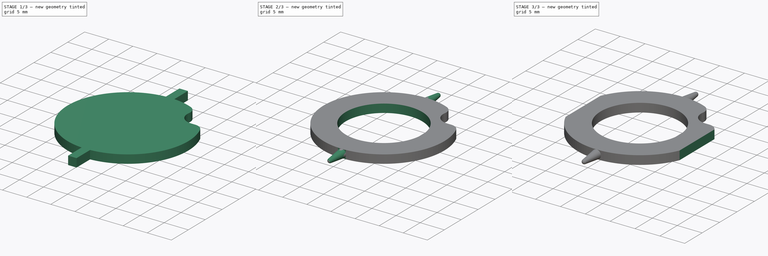
[diagram: build sequence overview — one tinted view per stage of 3, left to right]
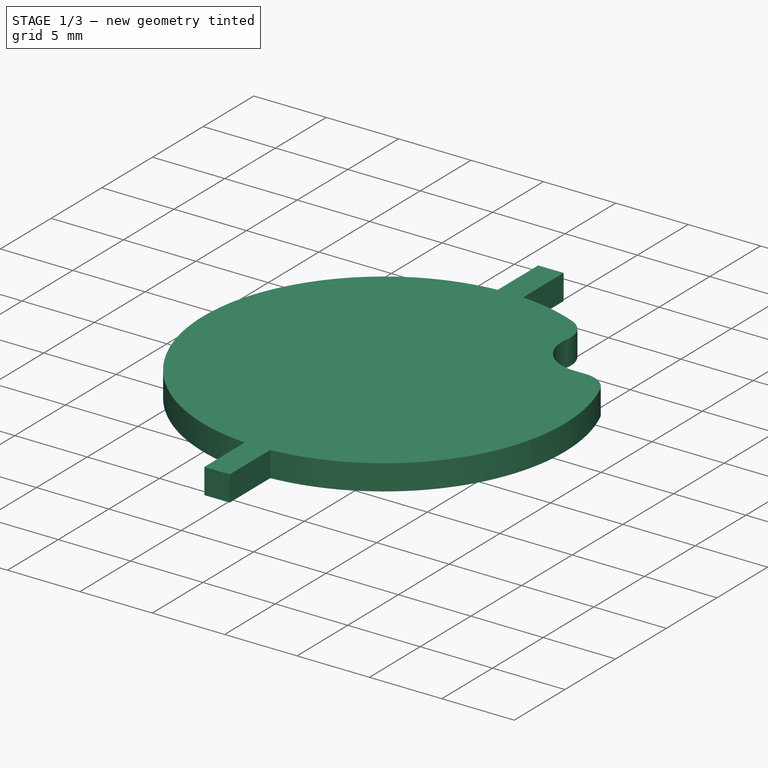
[diagram: stage 1 of 3 — iso view after this stage's code; geometry added in this stage tinted green]
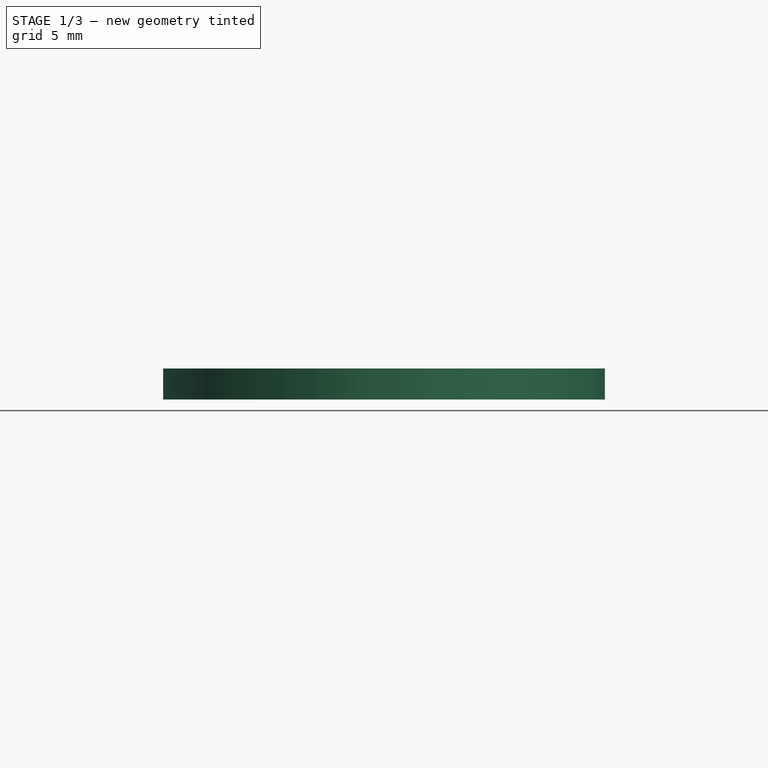
[diagram: stage 1 of 3 — front view after this stage's code; geometry added in this stage tinted green]
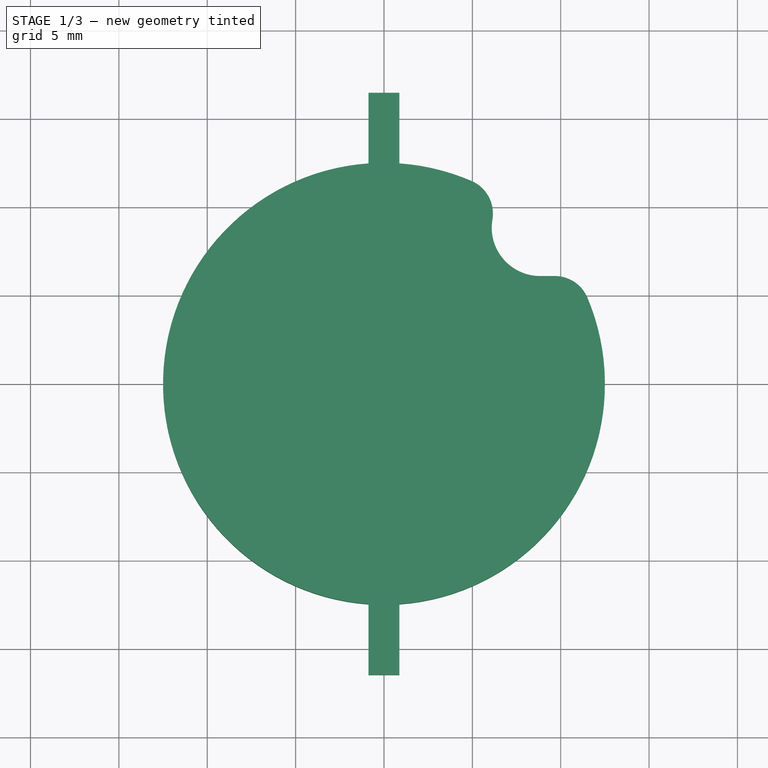
[diagram: stage 1 of 3 — top view after this stage's code; geometry added in this stage tinted green]
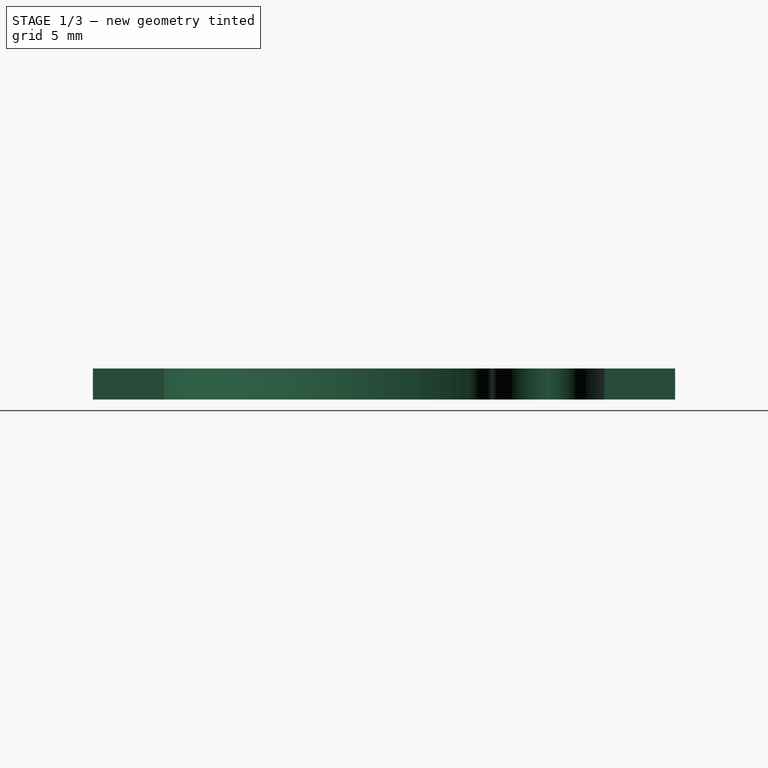
[diagram: stage 1 of 3 — right view after this stage's code; geometry added in this stage tinted green]
FCSTD DOCUMENT  (FreeCAD 0.18R4 (GitTag))
Label: flip_dot
License: All rights reserved
LicenseURL: http://en.wikipedia.org/wiki/All_rights_reserved
objects: Sketcher::SketchObject×4, PartDesign::Mirrored×2, PartDesign::Pocket×2, PartDesign::Pad×1, PartDesign::Fillet×1, PartDesign::Groove×1, PartDesign::Body×1
note: 16 computed .brp shape members not serialized (recipe doc carries the construction recipe); baked Part::Feature solids carry a one-line shape summary decoded from their .brp

FEATURE [Sketcher::SketchObject] Sketch
  MapMode = 5
  Support = -> [XY_Plane]
  sketch-geometry (14):
    g0: Circle [constr] CenterX=0 CenterY=0 CenterZ=0 NormalX=0 NormalY=0 NormalZ=1 AngleXU=0 Radius=16
    g1: ArcOfCircle CenterX=0 CenterY=0 CenterZ=0 NormalX=0 NormalY=0 NormalZ=1 AngleXU=0 Radius=12.5 StartAngle=1.64085 EndAngle=4.64233
    g2: LineSegment StartX=-0.875 StartY=12.4693 StartZ=0 EndX=-0.875 EndY=16.4693 EndZ=0
    g3: LineSegment StartX=0.875 StartY=12.4693 StartZ=0 EndX=0.875 EndY=16.4693 EndZ=0
    g4: LineSegment StartX=-0.875 StartY=16.4693 StartZ=0 EndX=0.875 EndY=16.4693 EndZ=0
    g5: LineSegment StartX=0.875 StartY=-12.4693 StartZ=0 EndX=0.875 EndY=-16.4693 EndZ=0
    g6: LineSegment StartX=-0.875 StartY=-16.4693 StartZ=0 EndX=0.875 EndY=-16.4693 EndZ=0
    g7: LineSegment StartX=-0.875 StartY=-12.4693 StartZ=0 EndX=-0.875 EndY=-16.4693 EndZ=0
    g8: ArcOfCircle CenterX=0 CenterY=0 CenterZ=0 NormalX=0 NormalY=0 NormalZ=1 AngleXU=0 Radius=12.5 StartAngle=4.78245 EndAngle=6.7926
    g9: LineSegment [constr] StartX=0 StartY=0 StartZ=0 EndX=8.83883 EndY=8.83883 EndZ=0
    g10: ArcOfCircle CenterX=8.83883 CenterY=8.83883 CenterZ=0 NormalX=0 NormalY=0 NormalZ=1 AngleXU=0 Radius=2.74296 StartAngle=2.46613 EndAngle=4.71239
    g11: LineSegment [constr] StartX=8.83883 StartY=8.83883 StartZ=0 EndX=8.83883 EndY=6.09588 EndZ=0
    g12: LineSegment StartX=8.83883 StartY=6.09588 StartZ=0 EndX=10.9128 EndY=6.09588 EndZ=0
    g13: ArcOfCircle CenterX=0 CenterY=0 CenterZ=0 NormalX=0 NormalY=0 NormalZ=1 AngleXU=0 Radius=12.5 StartAngle=1.00528 EndAngle=1.50074
  constraints (41):
    c: Coincident(g0,g-1)
    c: Diameter(g0) = 32
    c: Coincident(g1,g-1)
    c: Diameter(g1) = 25
    c: Vertical(g2)
    c: Vertical(g3)
    c: Coincident(g4,g2)
    c: Horizontal(g4)
    c: Distance(g4) = 1.75
    c: Coincident(g3,g4)
    c: DistanceX(g2,g-1) = 0.875
    c: Coincident(g1,g2)
    c: Coincident(g13,g3)
    c: DistanceY(g3,g3) = 4
    c: Vertical(g7)
    c: Vertical(g5)
    c: Coincident(g6,g7)
    c: Horizontal(g6)
    c: Distance(g6) = 1.75
    c: Coincident(g5,g6)
    c: Equal(g1,g8)
    c: Coincident(g1,g7)
    c: Coincident(g8,g5)
    c: Coincident(g1,g8)
    c: DistanceY(g7,g7) = 4
    c: DistanceX(g1,g-1) = 0.875
    c: Coincident(g9,g1)
    c: PointOnObject(g10,g8)
    c: Angle(g-1,g9) = 0.785398
    c: Coincident(g11,g10)
    c: Vertical(g11)
    c: Coincident(g12,g10)
    c: Horizontal(g12)
    c: Equal(g8,g13)
    c: Coincident(g13,g10)
    c: Coincident(g8,g13)
    c: Coincident(g8,g12)
    c: Distance(g9) = 12.5
    c: DistanceX(g10) = 8.83883
    c: DistanceX(g10) = 6.69818
    c: Coincident(g11,g10)
FEATURE [PartDesign::Pad] Pad
  Length = 0.88
  Length2 = 0.88
  Profile = -> Sketch
  Type = 4
FEATURE [PartDesign::Fillet] Fillet
  Base = -> Pad [Edge1,Edge26]
  BaseFeature = -> Pad
  Radius = 2
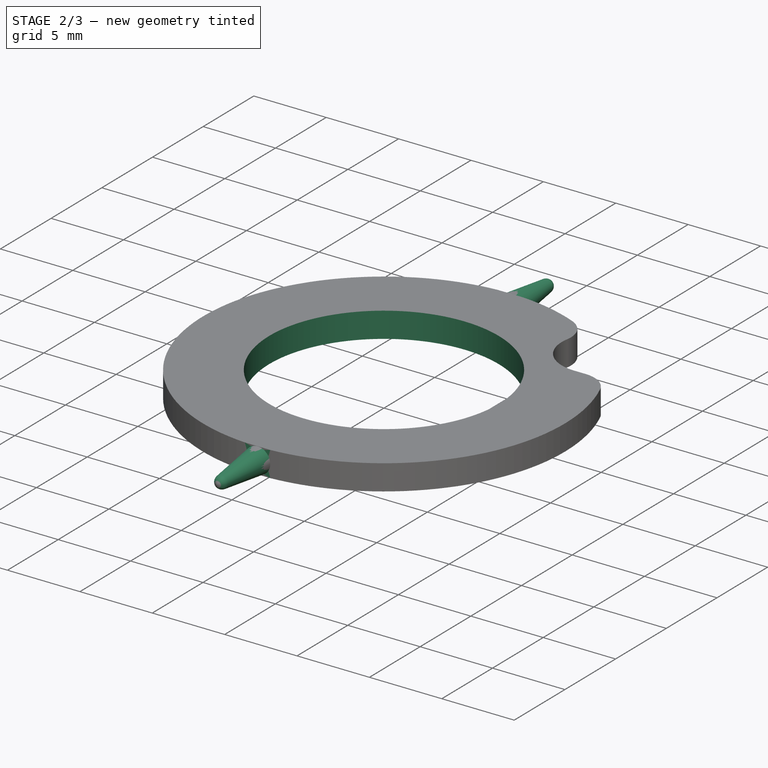
[diagram: stage 2 of 3 — iso view after this stage's code; geometry added in this stage tinted green]
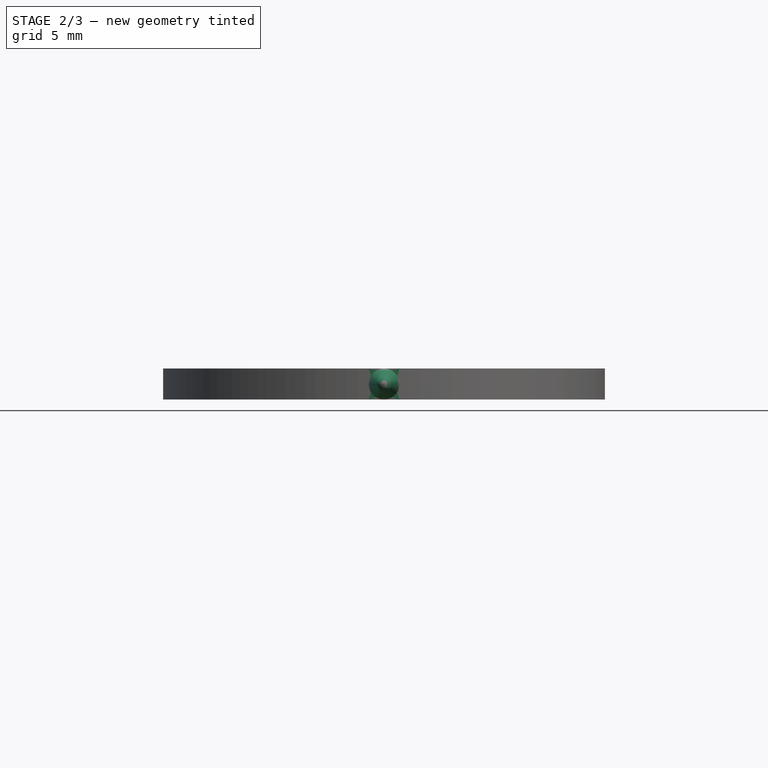
[diagram: stage 2 of 3 — front view after this stage's code; geometry added in this stage tinted green]
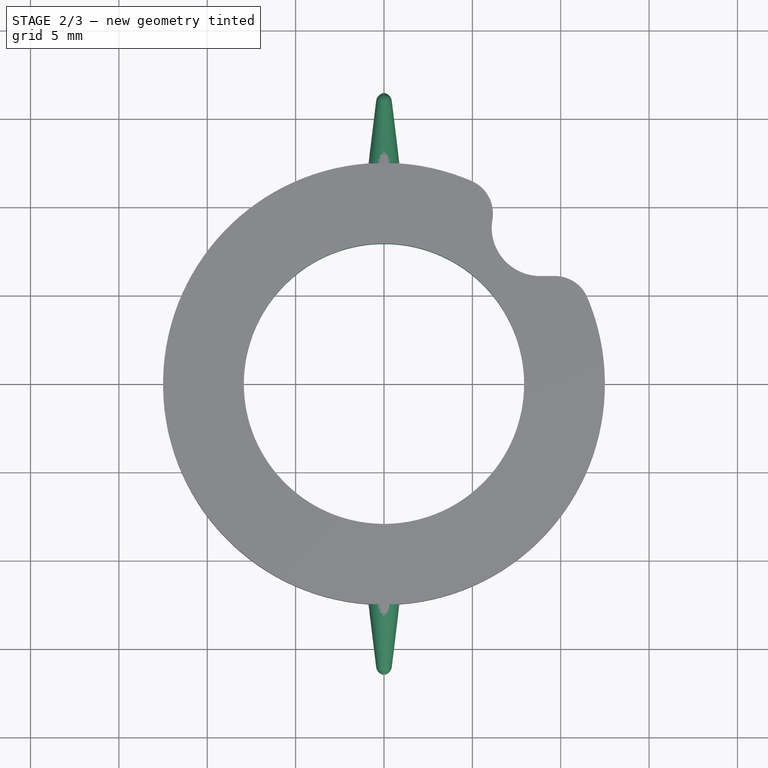
[diagram: stage 2 of 3 — top view after this stage's code; geometry added in this stage tinted green]
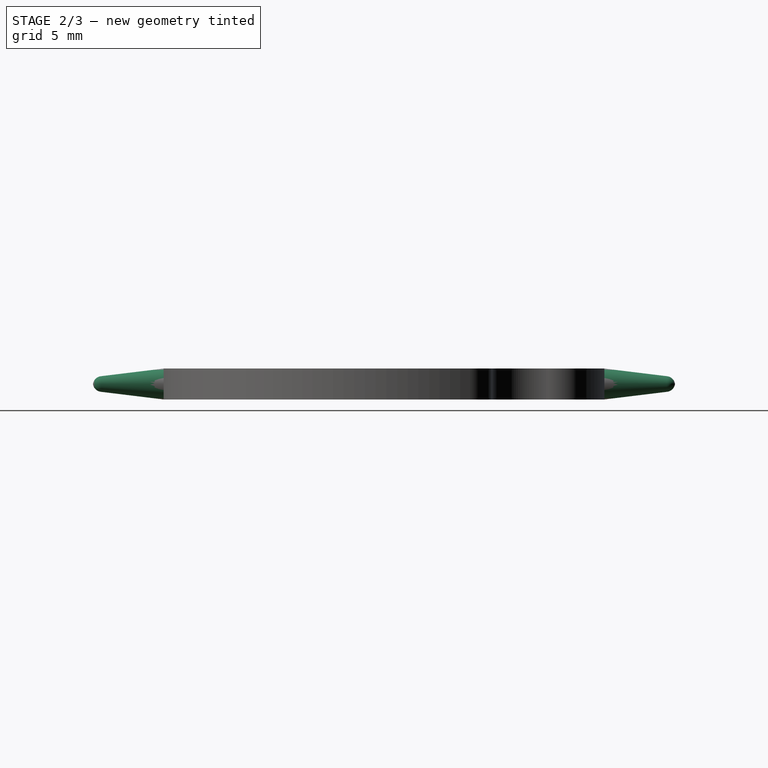
[diagram: stage 2 of 3 — right view after this stage's code; geometry added in this stage tinted green]
FEATURE [Sketcher::SketchObject] Sketch001
  ExternalGeometry = -> [Fillet]
  MapMode = 5
  Support = -> [XY_Plane]
  sketch-geometry (7):
    g0: LineSegment [constr] StartX=0 StartY=16.4693 StartZ=0 EndX=0 EndY=15.5943 EndZ=0
    g1: LineSegment StartX=-0.875 StartY=12.4693 StartZ=0 EndX=-1.42767 EndY=12.4693 EndZ=0
    g2: LineSegment StartX=-1.42767 StartY=12.4693 StartZ=0 EndX=-1.42767 EndY=16.9237 EndZ=0
    g3: LineSegment StartX=-1.42767 StartY=16.9237 StartZ=0 EndX=0 EndY=16.9237 EndZ=0
    g4: LineSegment StartX=0 StartY=16.9237 StartZ=0 EndX=0 EndY=16.4693 EndZ=0
    g5: ArcOfCircle CenterX=0.0732814 CenterY=15.9566 CenterZ=0 NormalX=0 NormalY=0 NormalZ=1 AngleXU=0 Radius=0.517912 StartAngle=1.71277 EndAngle=3.01989
    g6: LineSegment StartX=-0.875 StartY=12.4693 StartZ=0 EndX=-0.4408 EndY=16.0195 EndZ=0
  constraints (16):
    c: PointOnObject(g0,g-3)
    c: Vertical(g0)
    c: PointOnObject(g0,g-2)
    c: Distance(g0) = 0.875
    c: Horizontal(g1)
    c: Coincident(g2,g1)
    c: Vertical(g2)
    c: Coincident(g3,g2)
    c: PointOnObject(g3,g-2)
    c: Horizontal(g3)
    c: Coincident(g4,g3)
    c: Coincident(g4,g0)
    c: Coincident(g5,g4)
    c: Coincident(g6,g-4)
    c: Tangent(g6,g5) = 1.5708
    c: Coincident(g1,g6)
FEATURE [PartDesign::Groove] Groove
  Angle = 360
  Axis = (1e-16,1,-1e-16)
  Base = (0,0,0)
  BaseFeature = -> Fillet
  Profile = -> Sketch001
  ReferenceAxis = -> Y_Axis
  Reversed = true
FEATURE [PartDesign::Mirrored] Mirrored
  BaseFeature = -> Groove
  MirrorPlane = -> XZ_Plane
  Originals = -> [Groove]
FEATURE [Sketcher::SketchObject] Sketch002
  MapMode = 5
  Placement = pos=(0,0,0.88) rot=(0,0,1;0rad)
  Support = -> [Mirrored]
  sketch-geometry (1):
    g0: Circle CenterX=0 CenterY=0 CenterZ=0 NormalX=0 NormalY=0 NormalZ=1 AngleXU=0 Radius=7.93
  constraints (2):
    c: Coincident(g0,g-1)
    c: Radius(g0) = 7.93
FEATURE [PartDesign::Pocket] Pocket
  BaseFeature = -> Mirrored
  Length = 5
  Length2 = 100
  Profile = -> Sketch002
  Type = 0
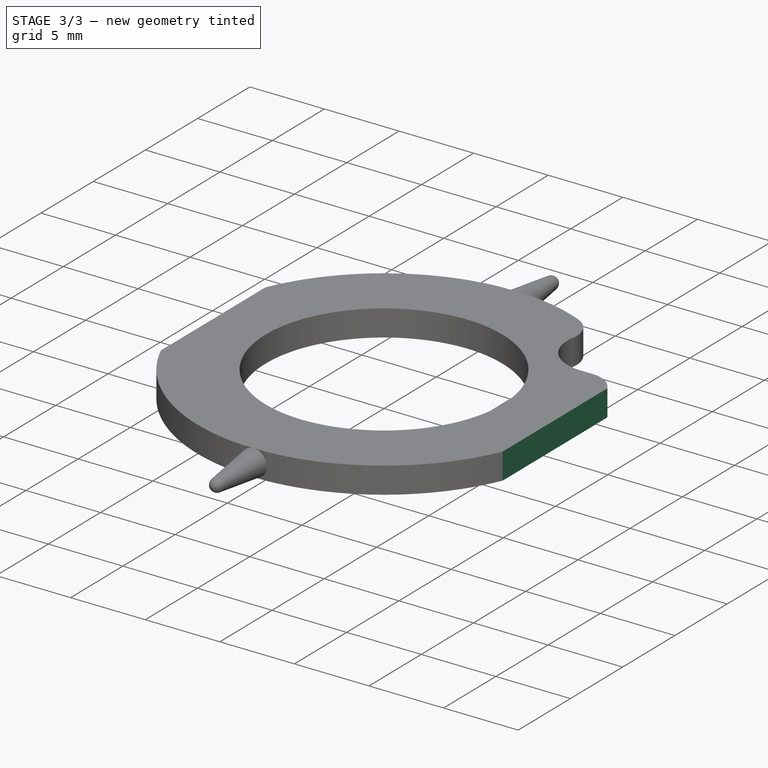
[diagram: stage 3 of 3 — iso view after this stage's code; geometry added in this stage tinted green]
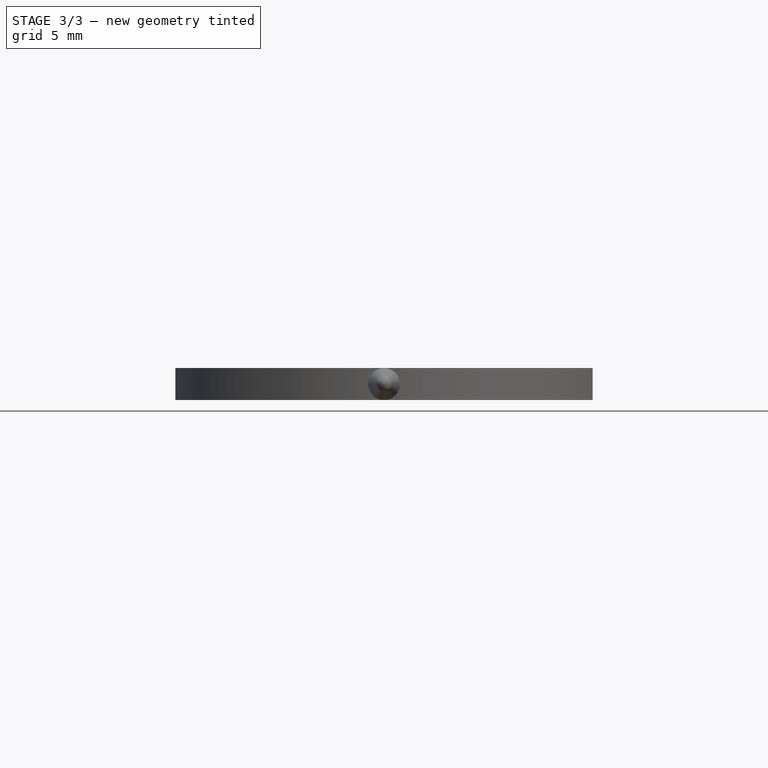
[diagram: stage 3 of 3 — front view after this stage's code; geometry added in this stage tinted green]
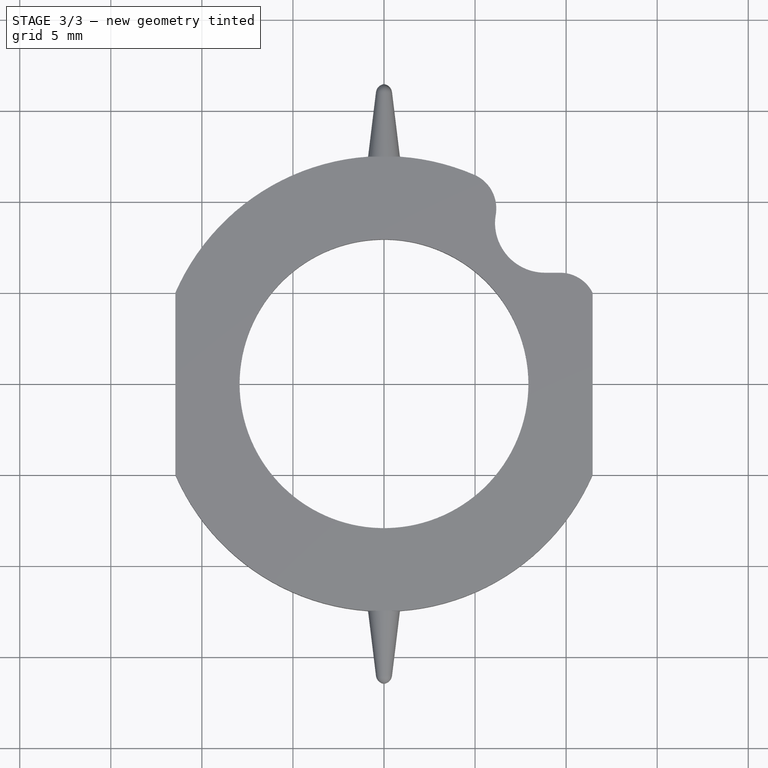
[diagram: stage 3 of 3 — top view after this stage's code; geometry added in this stage tinted green]
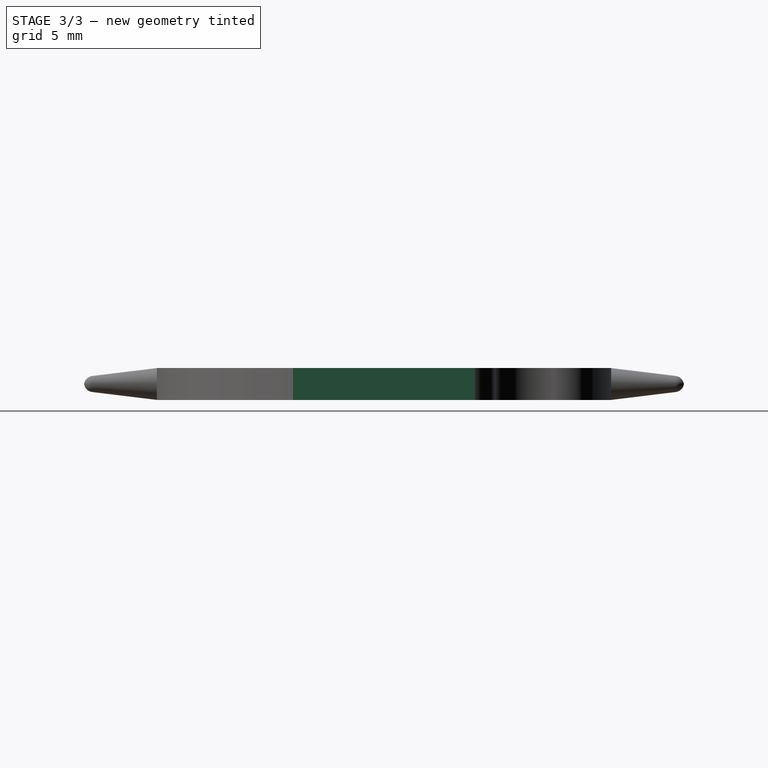
[diagram: stage 3 of 3 — right view after this stage's code; geometry added in this stage tinted green]
FEATURE [Sketcher::SketchObject] Sketch003
  ExternalGeometry = -> [Pocket]
  MapMode = 5
  Placement = pos=(0,0,0.88) rot=(0,0,1;0rad)
  Support = -> [Pocket]
  sketch-geometry (4):
    g0: LineSegment StartX=12.8822 StartY=5 StartZ=0 EndX=12.8822 EndY=-5 EndZ=0
    g1: LineSegment StartX=12.8822 StartY=5 StartZ=0 EndX=11.4522 EndY=5 EndZ=0
    g2: LineSegment StartX=12.8822 StartY=-5 StartZ=0 EndX=11.4564 EndY=-5 EndZ=0
    g3: LineSegment StartX=11.4564 StartY=-5 StartZ=0 EndX=11.4522 EndY=5 EndZ=0
  constraints (12):
    c: Vertical(g0)
    c: Distance(g0) = 10
    c: DistanceY(g-1,g0) = 5
    c: Coincident(g1,g0)
    c: Horizontal(g1)
    c: PointOnObject(g1,g-5)
    c: Coincident(g2,g0)
    c: Horizontal(g2)
    c: PointOnObject(g2,g-3)
    c: Coincident(g3,g2)
    c: DistanceX(g1,g1) = 1.43
    c: Coincident(g3,g1)
FEATURE [PartDesign::Pocket] Pocket001
  BaseFeature = -> Pocket
  Length = 5
  Length2 = 100
  Profile = -> Sketch003
  Type = 0
FEATURE [PartDesign::Mirrored] Mirrored001
  BaseFeature = -> Pocket001
  MirrorPlane = -> Sketch003 [V_Axis]
  Originals = -> [Pocket001]
FEATURE [PartDesign::Body] Body
  Group = -> [Sketch,Pad,Fillet,Sketch001,Groove,Mirrored,Sketch002,Pocket,Sketch003,Pocket001,Mirrored001]
  Origin = -> Origin
  Tip = -> Mirrored001
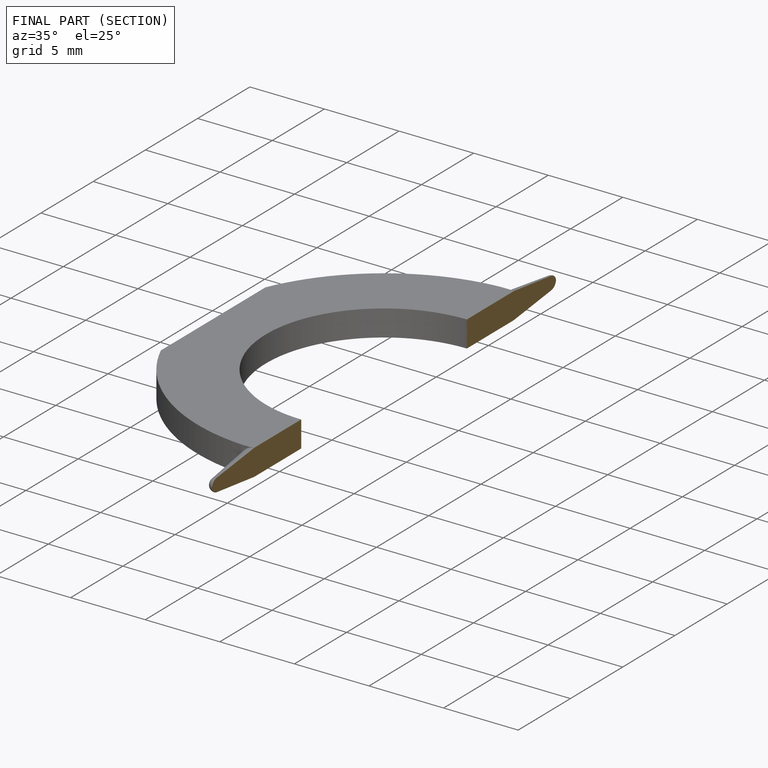
[diagram: finished part — half-section view (interior)]
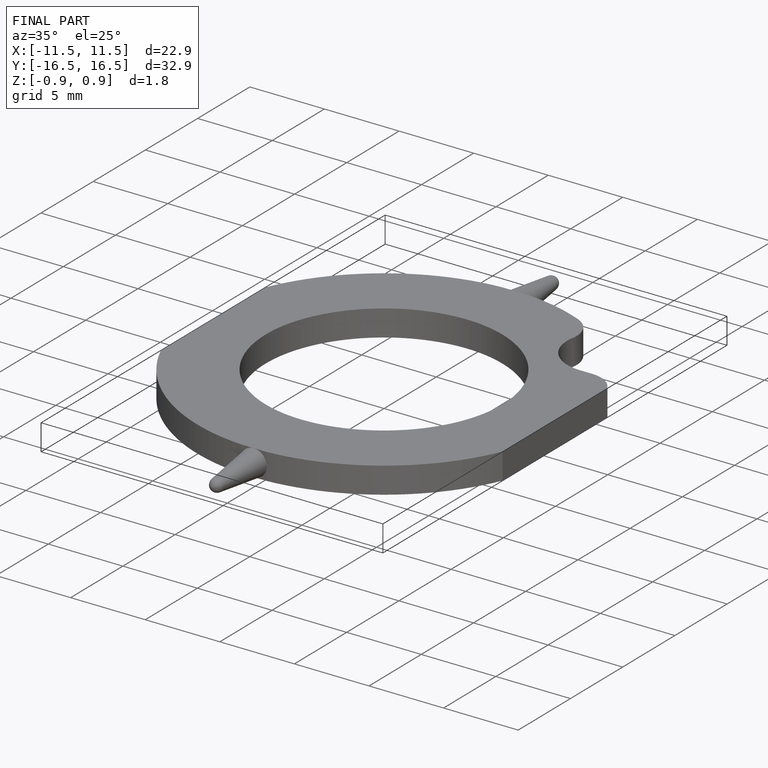
[diagram: finished part — iso view with bounding-box wireframe]
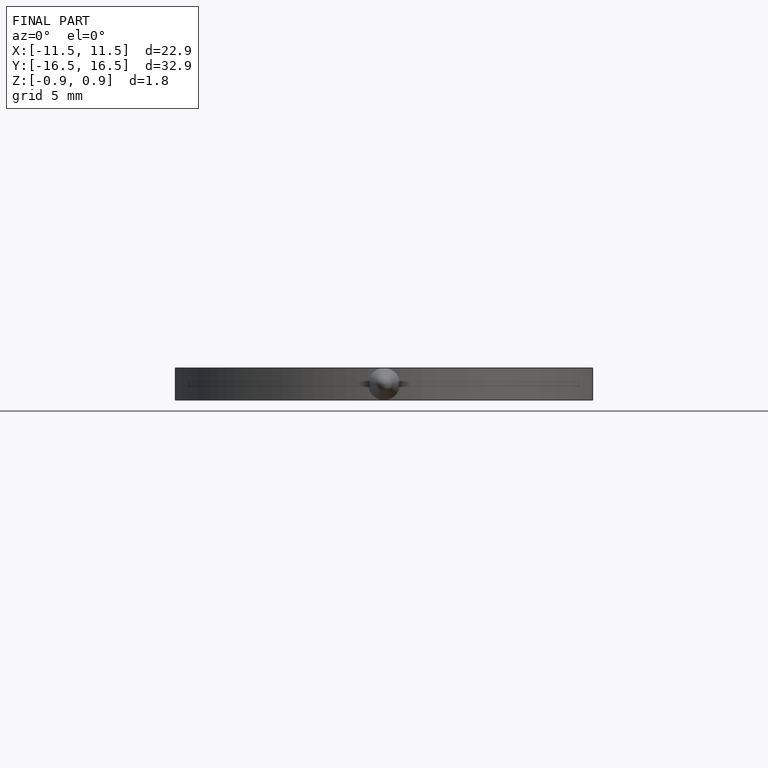
[diagram: finished part — front view with bounding-box wireframe]
